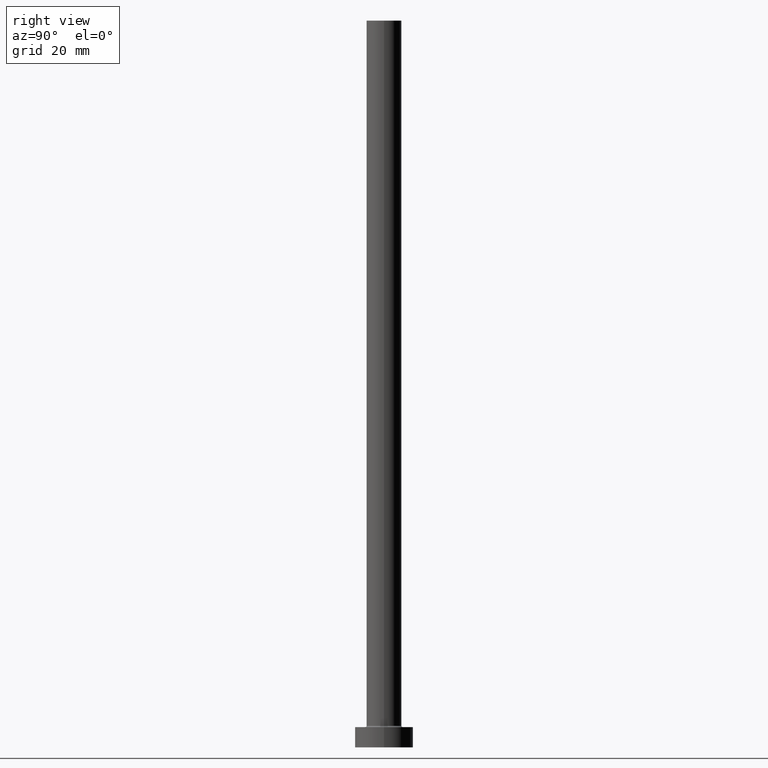
[diagram: clean part render]
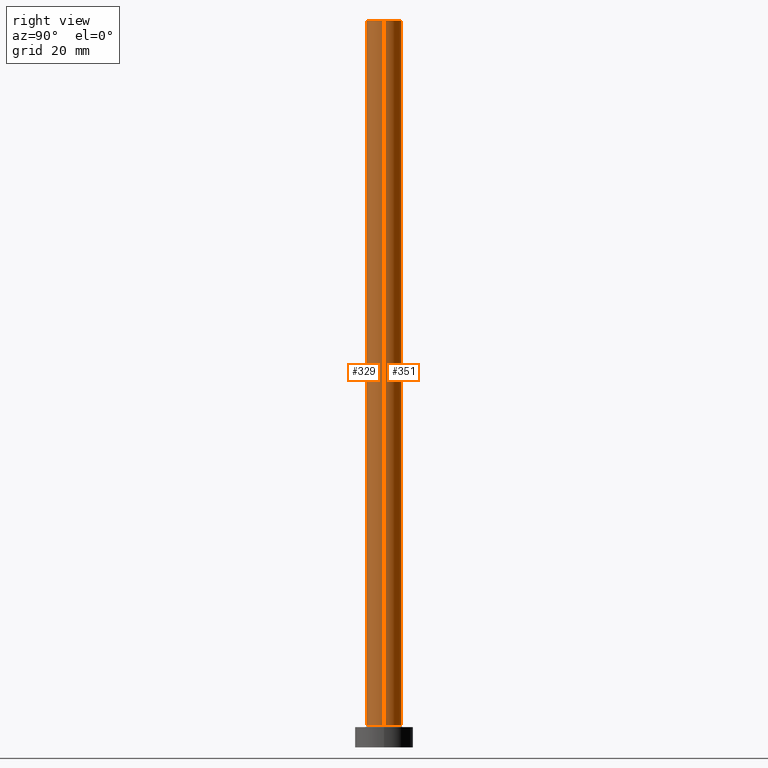
[diagram: same view with one multi-face feature highlighted, each face labeled with its STEP entity id]
A machine part, right view. The highlighted faces form ONE feature: a constant-radius fillet chain: 2 tangent blend faces with common blend radius 6 mm. The faces share edges in the B-rep.
Their STEP definitions:
[1] entity #351 (Cylinder):
#8 = CYLINDRICAL_SURFACE ( 'NONE', #448, 6.000000000000000888 ) ;
#12 = VERTEX_POINT ( 'NONE', #382 ) ;
#22 = AXIS2_PLACEMENT_3D ( 'NONE', #275, #357, #208 ) ;
#26 = ORIENTED_EDGE ( 'NONE', *, *, #192, .T. ) ;
#41 = CARTESIAN_POINT ( 'NONE',  ( -6.000000000000000888, 0.000000000000000000, 250.0000000000000000 ) ) ;
#80 = CARTESIAN_POINT ( 'NONE',  ( 0.000000000000000000, 0.000000000000000000, 250.0000000000000000 ) ) ;
#87 = ORIENTED_EDGE ( 'NONE', *, *, #242, .T. ) ;
#96 = VERTEX_POINT ( 'NONE', #417 ) ;
#121 = VERTEX_POINT ( 'NONE', #202 ) ;
#141 = DIRECTION ( 'NONE',  ( 0.000000000000000000, 0.000000000000000000, 1.000000000000000000 ) ) ;
#143 = DIRECTION ( 'NONE',  ( 1.000000000000000000, 0.000000000000000000, 0.000000000000000000 ) ) ;
#150 = DIRECTION ( 'NONE',  ( -1.000000000000000000, 0.000000000000000000, 0.000000000000000000 ) ) ;
#185 = LINE ( 'NONE', #41, #400 ) ;
#192 = EDGE_CURVE ( 'NONE', #12, #210, #248, .T. ) ;
#202 = CARTESIAN_POINT ( 'NONE',  ( -6.000000000000000888, 0.000000000000000000, 250.0000000000000000 ) ) ;
#208 = DIRECTION ( 'NONE',  ( 1.000000000000000000, 0.000000000000000000, 0.000000000000000000 ) ) ;
#210 = VERTEX_POINT ( 'NONE', #385 ) ;
#242 = EDGE_CURVE ( 'NONE', #210, #96, #390, .T. ) ;
#248 = LINE ( 'NONE', #418, #249 ) ;
#249 = VECTOR ( 'NONE', #457, 1000.000000000000000 ) ;
#250 = DIRECTION ( 'NONE',  ( -0.000000000000000000, -0.000000000000000000, -1.000000000000000000 ) ) ;
#275 = CARTESIAN_POINT ( 'NONE',  ( 0.000000000000000000, 0.000000000000000000, 7.500000000000007105 ) ) ;
#277 = CIRCLE ( 'NONE', #295, 6.000000000000000888 ) ;
#293 = DIRECTION ( 'NONE',  ( -0.000000000000000000, -0.000000000000000000, -1.000000000000000000 ) ) ;
#295 = AXIS2_PLACEMENT_3D ( 'NONE', #426, #141, #143 ) ;
#296 = EDGE_CURVE ( 'NONE', #12, #121, #277, .T. ) ;
#326 = ORIENTED_EDGE ( 'NONE', *, *, #296, .F. ) ;
#330 = FACE_OUTER_BOUND ( 'NONE', #447, .T. ) ;
#351 = ADVANCED_FACE ( 'NONE', ( #330 ), #8, .T. ) ;
#357 = DIRECTION ( 'NONE',  ( 0.000000000000000000, 0.000000000000000000, 1.000000000000000000 ) ) ;
#362 = ORIENTED_EDGE ( 'NONE', *, *, #386, .F. ) ;
#382 = CARTESIAN_POINT ( 'NONE',  ( 6.000000000000000888, 7.347880794884120722E-16, 250.0000000000000000 ) ) ;
#385 = CARTESIAN_POINT ( 'NONE',  ( 6.000000000000000888, 7.347880794884120722E-16, 7.500000000000007105 ) ) ;
#386 = EDGE_CURVE ( 'NONE', #121, #96, #185, .T. ) ;
#390 = CIRCLE ( 'NONE', #22, 6.000000000000000888 ) ;
#400 = VECTOR ( 'NONE', #293, 1000.000000000000000 ) ;
#417 = CARTESIAN_POINT ( 'NONE',  ( -6.000000000000000888, 0.000000000000000000, 7.500000000000007105 ) ) ;
#418 = CARTESIAN_POINT ( 'NONE',  ( 6.000000000000000888, 7.347880794884120722E-16, 250.0000000000000000 ) ) ;
#426 = CARTESIAN_POINT ( 'NONE',  ( 0.000000000000000000, 0.000000000000000000, 250.0000000000000000 ) ) ;
#447 = EDGE_LOOP ( 'NONE', ( #326, #26, #87, #362 ) ) ;
#448 = AXIS2_PLACEMENT_3D ( 'NONE', #80, #250, #150 ) ;
#457 = DIRECTION ( 'NONE',  ( -0.000000000000000000, -0.000000000000000000, -1.000000000000000000 ) ) ;
[2] entity #329 (Cylinder):
#12 = VERTEX_POINT ( 'NONE', #382 ) ;
#21 = EDGE_CURVE ( 'NONE', #121, #12, #35, .T. ) ;
#35 = CIRCLE ( 'NONE', #292, 6.000000000000000888 ) ;
#41 = CARTESIAN_POINT ( 'NONE',  ( -6.000000000000000888, 0.000000000000000000, 250.0000000000000000 ) ) ;
#81 = ORIENTED_EDGE ( 'NONE', *, *, #434, .T. ) ;
#96 = VERTEX_POINT ( 'NONE', #417 ) ;
#116 = CARTESIAN_POINT ( 'NONE',  ( 0.000000000000000000, 0.000000000000000000, 250.0000000000000000 ) ) ;
#120 = DIRECTION ( 'NONE',  ( -0.000000000000000000, -0.000000000000000000, -1.000000000000000000 ) ) ;
#121 = VERTEX_POINT ( 'NONE', #202 ) ;
#149 = CARTESIAN_POINT ( 'NONE',  ( 0.000000000000000000, 0.000000000000000000, 7.500000000000007105 ) ) ;
#184 = ORIENTED_EDGE ( 'NONE', *, *, #386, .T. ) ;
#185 = LINE ( 'NONE', #41, #400 ) ;
#192 = EDGE_CURVE ( 'NONE', #12, #210, #248, .T. ) ;
#202 = CARTESIAN_POINT ( 'NONE',  ( -6.000000000000000888, 0.000000000000000000, 250.0000000000000000 ) ) ;
#210 = VERTEX_POINT ( 'NONE', #385 ) ;
#221 = CYLINDRICAL_SURFACE ( 'NONE', #423, 6.000000000000000888 ) ;
#236 = CIRCLE ( 'NONE', #257, 6.000000000000000888 ) ;
#240 = DIRECTION ( 'NONE',  ( 1.000000000000000000, 0.000000000000000000, 0.000000000000000000 ) ) ;
#248 = LINE ( 'NONE', #418, #249 ) ;
#249 = VECTOR ( 'NONE', #457, 1000.000000000000000 ) ;
#257 = AXIS2_PLACEMENT_3D ( 'NONE', #149, #289, #435 ) ;
#289 = DIRECTION ( 'NONE',  ( 0.000000000000000000, 0.000000000000000000, 1.000000000000000000 ) ) ;
#292 = AXIS2_PLACEMENT_3D ( 'NONE', #313, #453, #240 ) ;
#293 = DIRECTION ( 'NONE',  ( -0.000000000000000000, -0.000000000000000000, -1.000000000000000000 ) ) ;
#302 = ORIENTED_EDGE ( 'NONE', *, *, #21, .F. ) ;
#313 = CARTESIAN_POINT ( 'NONE',  ( 0.000000000000000000, 0.000000000000000000, 250.0000000000000000 ) ) ;
#325 = FACE_OUTER_BOUND ( 'NONE', #396, .T. ) ;
#329 = ADVANCED_FACE ( 'NONE', ( #325 ), #221, .T. ) ;
#368 = DIRECTION ( 'NONE',  ( -1.000000000000000000, 0.000000000000000000, 0.000000000000000000 ) ) ;
#382 = CARTESIAN_POINT ( 'NONE',  ( 6.000000000000000888, 7.347880794884120722E-16, 250.0000000000000000 ) ) ;
#385 = CARTESIAN_POINT ( 'NONE',  ( 6.000000000000000888, 7.347880794884120722E-16, 7.500000000000007105 ) ) ;
#386 = EDGE_CURVE ( 'NONE', #121, #96, #185, .T. ) ;
#396 = EDGE_LOOP ( 'NONE', ( #439, #302, #184, #81 ) ) ;
#400 = VECTOR ( 'NONE', #293, 1000.000000000000000 ) ;
#417 = CARTESIAN_POINT ( 'NONE',  ( -6.000000000000000888, 0.000000000000000000, 7.500000000000007105 ) ) ;
#418 = CARTESIAN_POINT ( 'NONE',  ( 6.000000000000000888, 7.347880794884120722E-16, 250.0000000000000000 ) ) ;
#423 = AXIS2_PLACEMENT_3D ( 'NONE', #116, #120, #368 ) ;
#434 = EDGE_CURVE ( 'NONE', #96, #210, #236, .T. ) ;
#435 = DIRECTION ( 'NONE',  ( 1.000000000000000000, 0.000000000000000000, 0.000000000000000000 ) ) ;
#439 = ORIENTED_EDGE ( 'NONE', *, *, #192, .F. ) ;
#453 = DIRECTION ( 'NONE',  ( 0.000000000000000000, 0.000000000000000000, 1.000000000000000000 ) ) ;
#457 = DIRECTION ( 'NONE',  ( -0.000000000000000000, -0.000000000000000000, -1.000000000000000000 ) ) ;